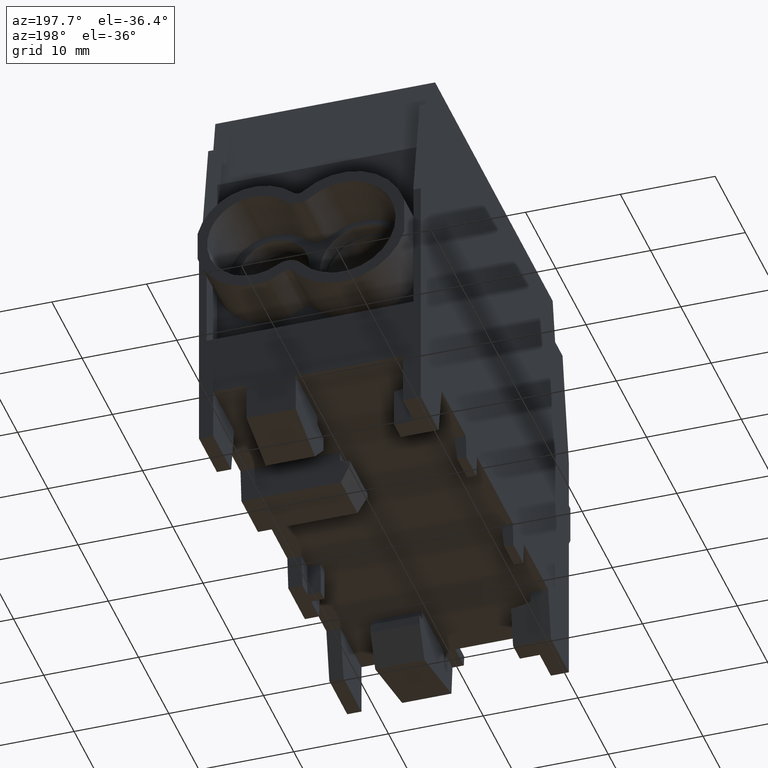
[diagram: clean part render]
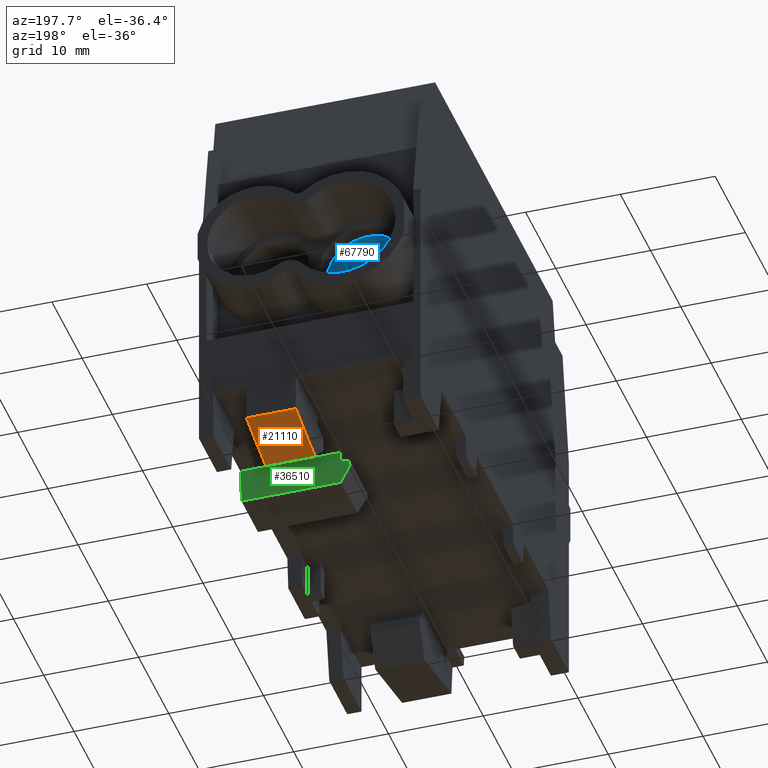
[diagram: same view with three faces highlighted in distinct colors, each labeled with its STEP entity id]
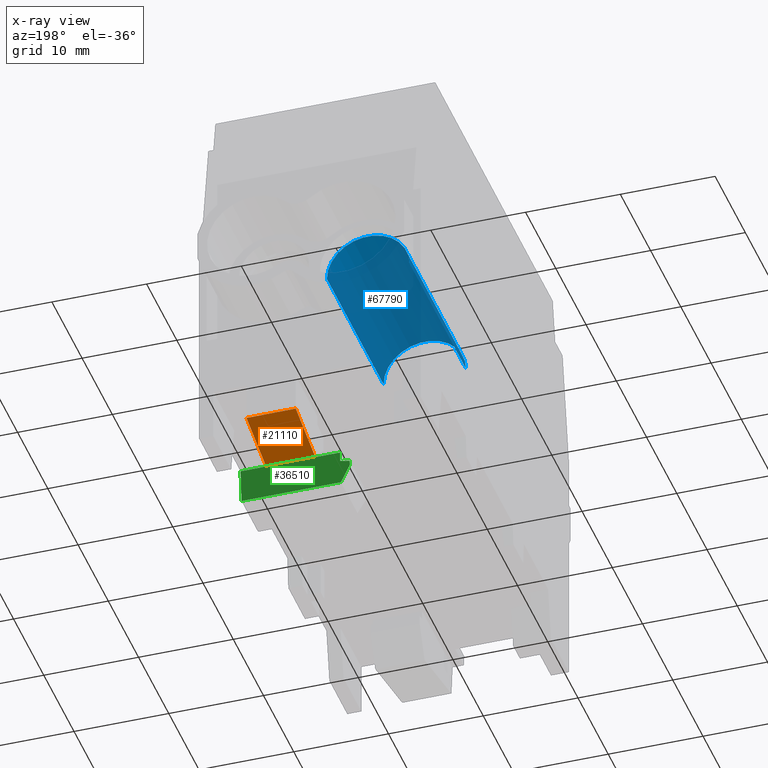
[diagram: x-ray of the same camera — body ghosted, the three highlighted faces saturated]
A machine part, auxiliary view with three faces highlighted in distinct colors.
The next image is the same camera in x-ray (body ghosted, the three faces saturated) — at least one of them is partly hidden behind the body in this view.
Their STEP definitions:

[orange] entity #21110 — the highlighted planar face has unit normal (0, 0.2244, -0.9745).
#20720=CARTESIAN_POINT('',(22.3863960220664,27.,-11.5));
#20730=DIRECTION('',(0.,0.224437286127374,-0.974488534871385));
#20740=DIRECTION('',(0.,0.974488534871385,0.224437286127374));
#20750=AXIS2_PLACEMENT_3D('',#20720,#20730,#20740);
#20760=PLANE('',#20750);
#20770=CARTESIAN_POINT('',(1.50000000000001,7.105427357601E-15,
-17.7184484563883));
#20780=DIRECTION('',(8.32667268468867E-17,0.974488534871385,
0.224437286127374));
#20790=VECTOR('',#20780,1.);
#20800=LINE('',#20770,#20790);
#20810=CARTESIAN_POINT('',(1.50000000000001,18.1056195521769,
-13.5484906061591));
#20820=VERTEX_POINT('',#20810);
#20830=CARTESIAN_POINT('',(1.50000000000001,24.5,-12.0757822644804));
#20840=VERTEX_POINT('',#20830);
#20850=EDGE_CURVE('',#20820,#20840,#20800,.T.);
#20860=ORIENTED_EDGE('',*,*,#20850,.T.);
#20870=CARTESIAN_POINT('',(5.32907051820075E-15,18.1056195521769,
-13.5484906061591));
#20880=DIRECTION('',(-1.,3.52171301488886E-17,-7.55233793247775E-17));
#20890=VECTOR('',#20880,1.);
#20900=LINE('',#20870,#20890);
#20910=CARTESIAN_POINT('',(6.70000000000001,18.1056195521769,
-13.5484906061591));
#20920=VERTEX_POINT('',#20910);
#20930=EDGE_CURVE('',#20920,#20820,#20900,.T.);
#20940=ORIENTED_EDGE('',*,*,#20930,.T.);
#20950=CARTESIAN_POINT('',(6.70000000000001,7.105427357601E-15,
-17.7184484563883));
#20960=DIRECTION('',(0.,-0.974488534871385,-0.224437286127374));
#20970=VECTOR('',#20960,1.);
#20980=LINE('',#20950,#20970);
#20990=CARTESIAN_POINT('',(6.70000000000001,24.5,-12.0757822644804));
#21000=VERTEX_POINT('',#20990);
#21010=EDGE_CURVE('',#21000,#20920,#20980,.T.);
#21020=ORIENTED_EDGE('',*,*,#21010,.T.);
#21030=CARTESIAN_POINT('',(5.32907051820075E-15,24.5,-12.0757822644804))
;
#21040=DIRECTION('',(-1.,1.22108605138914E-16,2.81231876717709E-17));
#21050=VECTOR('',#21040,1.);
#21060=LINE('',#21030,#21050);
#21070=EDGE_CURVE('',#21000,#20840,#21060,.T.);
#21080=ORIENTED_EDGE('',*,*,#21070,.F.);
#21090=EDGE_LOOP('',(#21080,#21020,#20940,#20860));
#21100=FACE_OUTER_BOUND('',#21090,.T.);
#21110=ADVANCED_FACE('',(#21100),#20760,.T.);

[blue] entity #67790 — the highlighted cylindrical surface (partial cylindrical patch) has radius 4.35 mm, axis along (-0, -1, -0).
#63810=CARTESIAN_POINT('',(-8.74999999999999,0.300000000000192,
7.60000000000002));
#63820=VERTEX_POINT('',#63810);
#63980=CARTESIAN_POINT('',(-0.0500000000000236,0.300000000000187,
7.60000000000002));
#63990=VERTEX_POINT('',#63980);
#64020=CARTESIAN_POINT('',(-4.39999999999999,0.300000000000008,
7.60000000000001));
#64030=DIRECTION('',(-1.22108605138914E-16,-1.,-1.77619756370172E-16));
#64040=DIRECTION('',(-1.,1.22108605138914E-16,-5.55111512312578E-17));
#64050=AXIS2_PLACEMENT_3D('',#64020,#64030,#64040);
#64060=CIRCLE('',#64050,4.35);
#64070=EDGE_CURVE('',#63990,#63820,#64060,.T.);
#67300=CARTESIAN_POINT('',(-4.39999999999999,19.05,7.60000000000001));
#67310=DIRECTION('',(-2.55432488524287E-16,-1.,-1.77619756370172E-16));
#67320=DIRECTION('',(-1.,2.55432488524287E-16,-5.55111512312578E-17));
#67330=AXIS2_PLACEMENT_3D('',#67300,#67310,#67320);
#67340=CIRCLE('',#67330,4.35);
#67350=CARTESIAN_POINT('',(-8.74999999999999,19.05,7.60000000000001));
#67360=VERTEX_POINT('',#67350);
#67370=CARTESIAN_POINT('',(-0.0499999999999895,19.05,7.60000000000001));
#67380=VERTEX_POINT('',#67370);
#67410=EDGE_CURVE('',#67380,#67360,#67340,.T.);
#67580=CARTESIAN_POINT('',(-4.4,-0.467022366081835,7.60000000000001));
#67590=DIRECTION('',(-2.55432488524287E-16,-1.,-1.77619756370172E-16));
#67600=DIRECTION('',(-1.,2.55432488524287E-16,-5.55111512312578E-17));
#67610=AXIS2_PLACEMENT_3D('',#67580,#67590,#67600);
#67620=CYLINDRICAL_SURFACE('',#67610,4.35);
#67630=CARTESIAN_POINT('',(-8.75,-0.467022366081834,7.60000000000001));
#67640=DIRECTION('',(-2.55432488524287E-16,-1.,-1.77619756370172E-16));
#67650=VECTOR('',#67640,1.);
#67660=LINE('',#67630,#67650);
#67670=EDGE_CURVE('',#67360,#63820,#67660,.T.);
#67680=ORIENTED_EDGE('',*,*,#67670,.F.);
#67690=ORIENTED_EDGE('',*,*,#64070,.T.);
#67700=CARTESIAN_POINT('',(-0.0499999999999945,-0.467022366081836,
7.60000000000001));
#67710=DIRECTION('',(-2.55432488524287E-16,-1.,-1.77619756370172E-16));
#67720=VECTOR('',#67710,1.);
#67730=LINE('',#67700,#67720);
#67740=EDGE_CURVE('',#67380,#63990,#67730,.T.);
#67750=ORIENTED_EDGE('',*,*,#67740,.T.);
#67760=ORIENTED_EDGE('',*,*,#67410,.F.);
#67770=EDGE_LOOP('',(#67760,#67750,#67690,#67680));
#67780=FACE_OUTER_BOUND('',#67770,.T.);
#67790=ADVANCED_FACE('',(#67780),#67620,.F.);

[green] entity #36510 — the highlighted planar face has unit normal (0, 0.9962, -0.0872).
#1710=CARTESIAN_POINT('',(1.20000000000001,10.7126020282667,-9.));
#1720=VERTEX_POINT('',#1710);
#1750=CARTESIAN_POINT('',(1.20000000000001,11.2889034806368,
-2.41284425725235));
#1760=DIRECTION('',(0.,-0.0871557427476584,-0.996194698091745));
#1770=VECTOR('',#1760,1.);
#1780=LINE('',#1750,#1770);
#1790=CARTESIAN_POINT('',(1.20000000000001,10.8000906917926,-8.));
#1800=VERTEX_POINT('',#1790);
#1810=EDGE_CURVE('',#1800,#1720,#1780,.T.);
#8250=CARTESIAN_POINT('',(11.7,10.4938803694519,-11.5));
#8260=VERTEX_POINT('',#8250);
#8290=CARTESIAN_POINT('',(1.77635683940025E-14,10.4938803694519,-11.5));
#8300=DIRECTION('',(1.,0.,0.));
#8310=VECTOR('',#8300,1.);
#8320=LINE('',#8290,#8310);
#8330=CARTESIAN_POINT('',(1.2,10.4938803694519,-11.5));
#8340=VERTEX_POINT('',#8330);
#8350=EDGE_CURVE('',#8340,#8260,#8320,.T.);
#18720=CARTESIAN_POINT('',(0.200000000000006,10.653431084618,
-9.67632698070847));
#18730=VERTEX_POINT('',#18720);
#18760=CARTESIAN_POINT('',(0.200000000000005,10.6971754163809,
-9.17632698070846));
#18770=DIRECTION('',(1.10599829083096E-16,-0.0871557427476586,
-0.996194698091746));
#18780=VECTOR('',#18770,1.);
#18790=LINE('',#18760,#18780);
#18800=CARTESIAN_POINT('',(0.200000000000005,10.6971754163809,
-9.17632698070846));
#18810=VERTEX_POINT('',#18800);
#18820=EDGE_CURVE('',#18810,#18730,#18790,.T.);
#23350=CARTESIAN_POINT('',(11.7,10.8000906917926,-8.));
#23360=VERTEX_POINT('',#23350);
#23390=CARTESIAN_POINT('',(11.7,11.5,0.));
#23400=DIRECTION('',(0.,-0.0871557427476584,-0.996194698091746));
#23410=VECTOR('',#23400,1.);
#23420=LINE('',#23390,#23410);
#23430=EDGE_CURVE('',#23360,#8260,#23420,.T.);
#34150=CARTESIAN_POINT('',(1.20000000000001,10.7126020282667,-9.));
#34160=DIRECTION('',(-0.984694123715652,-0.0151904940727355,
-0.173628141756143));
#34170=VECTOR('',#34160,1.);
#34180=LINE('',#34150,#34170);
#34190=EDGE_CURVE('',#1720,#18810,#34180,.T.);
#36270=CARTESIAN_POINT('',(1.20000000000001,11.5,0.));
#36280=DIRECTION('',(0.,0.996194698091746,-0.0871557427476584));
#36290=DIRECTION('',(0.,0.0871557427476584,0.996194698091746));
#36300=AXIS2_PLACEMENT_3D('',#36270,#36280,#36290);
#36310=PLANE('',#36300);
#36320=ORIENTED_EDGE('',*,*,#1810,.F.);
#36330=ORIENTED_EDGE('',*,*,#34190,.F.);
#36340=ORIENTED_EDGE('',*,*,#18820,.F.);
#36350=CARTESIAN_POINT('',(0.200000000000005,10.653431084618,
-9.67632698070846));
#36360=DIRECTION('',(0.479394994658813,-0.0764878142448649,
-0.874259717342689));
#36370=VECTOR('',#36360,1.);
#36380=LINE('',#36350,#36370);
#36390=EDGE_CURVE('',#18730,#8340,#36380,.T.);
#36400=ORIENTED_EDGE('',*,*,#36390,.F.);
#36410=ORIENTED_EDGE('',*,*,#8350,.F.);
#36420=ORIENTED_EDGE('',*,*,#23430,.T.);
#36430=CARTESIAN_POINT('',(5.32907051820075E-15,10.8000906917926,-8.));
#36440=DIRECTION('',(1.,0.,0.));
#36450=VECTOR('',#36440,1.);
#36460=LINE('',#36430,#36450);
#36470=EDGE_CURVE('',#1800,#23360,#36460,.T.);
#36480=ORIENTED_EDGE('',*,*,#36470,.T.);
#36490=EDGE_LOOP('',(#36480,#36420,#36410,#36400,#36340,#36330,#36320));
#36500=FACE_OUTER_BOUND('',#36490,.T.);
#36510=ADVANCED_FACE('',(#36500),#36310,.T.);